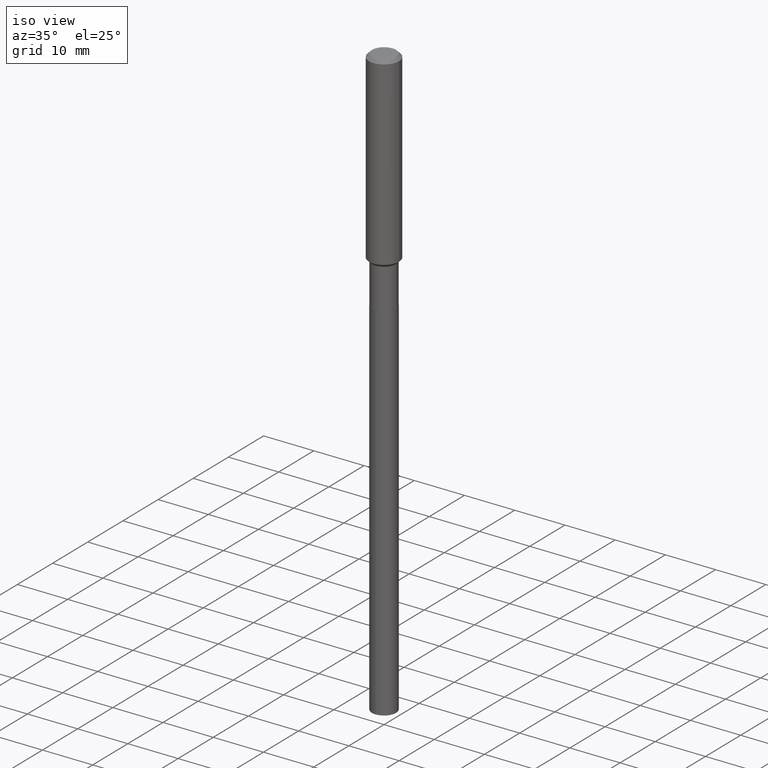
[diagram: clean part render]
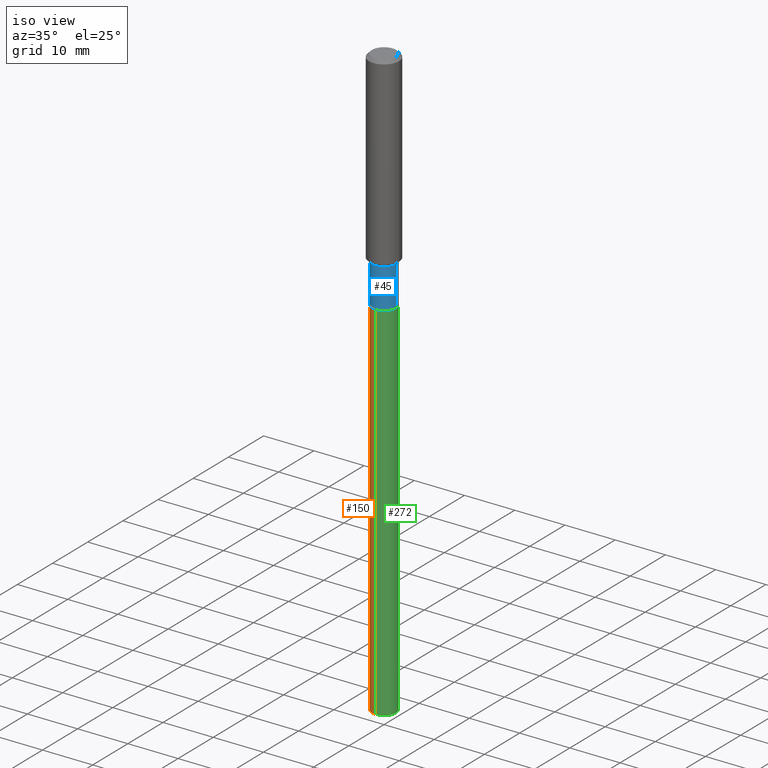
[diagram: same view with three faces highlighted in distinct colors, each labeled with its STEP entity id]
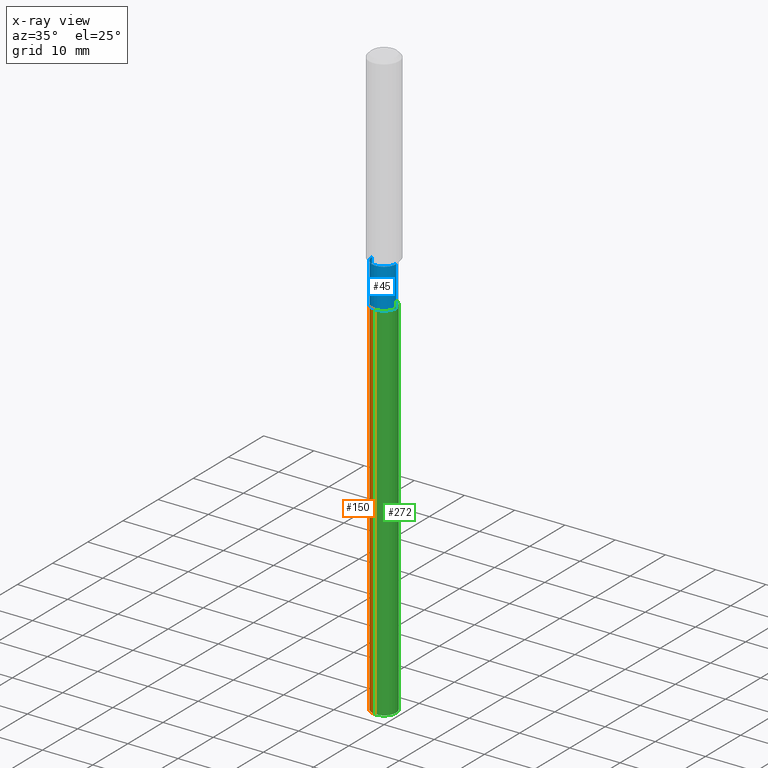
[diagram: x-ray of the same camera — body ghosted, the three highlighted faces saturated]
A machine part, iso view with three faces highlighted in distinct colors.
The next image is the same camera in x-ray (body ghosted, the three faces saturated) — at least one of them is partly hidden behind the body in this view.
Their STEP definitions:

[orange] entity #150 — the highlighted cylindrical surface (edge-blend (fillet) strip) has radius 2.4003 mm, axis along (-0, 0, 1).
#4 = CARTESIAN_POINT ( 'NONE',  ( -6.598899730413084303E-16, -0.09450000000000620404, -1.779499999999998527 ) ) ;
#5 = EDGE_LOOP ( 'NONE', ( #240, #195, #453, #149 ) ) ;
#35 = DIRECTION ( 'NONE',  ( -6.982962677686265922E-15, -1.000000000000000000, 5.781688875479922944E-15 ) ) ;
#38 = EDGE_CURVE ( 'NONE', #336, #402, #316, .T. ) ;
#39 = AXIS2_PLACEMENT_3D ( 'NONE', #295, #365, #111 ) ;
#56 = EDGE_CURVE ( 'NONE', #64, #224, #462, .T. ) ;
#64 = VERTEX_POINT ( 'NONE', #360 ) ;
#102 = DIRECTION ( 'NONE',  ( -2.445477424987146974E-29, 3.491468996228114924E-15, 1.000000000000000000 ) ) ;
#111 = DIRECTION ( 'NONE',  ( -6.982962677686265922E-15, -1.000000000000000000, 2.890844437739961472E-15 ) ) ;
#132 = CARTESIAN_POINT ( 'NONE',  ( -6.598899730413084303E-16, -0.09450000000000620404, -1.779499999999998971 ) ) ;
#137 = DIRECTION ( 'NONE',  ( -2.445477424987146974E-29, 3.491468996228114924E-15, 1.000000000000000000 ) ) ;
#141 = CARTESIAN_POINT ( 'NONE',  ( 1.136601462681407655E-28, -1.622758588389320195E-14, -4.647775460054386798 ) ) ;
#149 = ORIENTED_EDGE ( 'NONE', *, *, #175, .F. ) ;
#150 = ADVANCED_FACE ( 'NONE', ( #258 ), #333, .T. ) ;
#175 = EDGE_CURVE ( 'NONE', #224, #402, #222, .T. ) ;
#195 = ORIENTED_EDGE ( 'NONE', *, *, #196, .T. ) ;
#196 = EDGE_CURVE ( 'NONE', #64, #336, #198, .T. ) ;
#198 = CIRCLE ( 'NONE', #344, 0.09449999999999998679 ) ;
#208 = CARTESIAN_POINT ( 'NONE',  ( 6.714628852933380677E-16, 0.09449999999999378342, -1.779499999999999416 ) ) ;
#222 = CIRCLE ( 'NONE', #354, 0.09449999999999998679 ) ;
#223 = DIRECTION ( 'NONE',  ( -6.982962677686265922E-15, -1.000000000000000000, 2.890844437739961472E-15 ) ) ;
#224 = VERTEX_POINT ( 'NONE', #289 ) ;
#230 = CARTESIAN_POINT ( 'NONE',  ( -6.598899730412382216E-16, -0.09450000000001619604, -4.647775460054386798 ) ) ;
#240 = ORIENTED_EDGE ( 'NONE', *, *, #56, .F. ) ;
#258 = FACE_OUTER_BOUND ( 'NONE', #5, .T. ) ;
#262 = VECTOR ( 'NONE', #357, 39.37007874015748143 ) ;
#289 = CARTESIAN_POINT ( 'NONE',  ( 6.714628852934085722E-16, 0.09449999999999375566, -1.779499999999999194 ) ) ;
#295 = CARTESIAN_POINT ( 'NONE',  ( 4.351711740606448637E-29, -6.213091042471374170E-15, -1.779499999999999194 ) ) ;
#316 = LINE ( 'NONE', #132, #421 ) ;
#333 = CYLINDRICAL_SURFACE ( 'NONE', #39, 0.09449999999999998679 ) ;
#336 = VERTEX_POINT ( 'NONE', #230 ) ;
#344 = AXIS2_PLACEMENT_3D ( 'NONE', #141, #137, #35 ) ;
#350 = DIRECTION ( 'NONE',  ( -2.445477424987146974E-29, 3.491468996228115319E-15, 1.000000000000000000 ) ) ;
#354 = AXIS2_PLACEMENT_3D ( 'NONE', #472, #102, #223 ) ;
#357 = DIRECTION ( 'NONE',  ( -2.445477424987146974E-29, 3.491468996228115319E-15, 1.000000000000000000 ) ) ;
#360 = CARTESIAN_POINT ( 'NONE',  ( 6.714628852934081777E-16, 0.09449999999998374978, -4.647775460054387686 ) ) ;
#365 = DIRECTION ( 'NONE',  ( -2.445477424987146974E-29, 3.491468996228114924E-15, 1.000000000000000000 ) ) ;
#402 = VERTEX_POINT ( 'NONE', #4 ) ;
#421 = VECTOR ( 'NONE', #350, 39.37007874015748143 ) ;
#453 = ORIENTED_EDGE ( 'NONE', *, *, #38, .T. ) ;
#462 = LINE ( 'NONE', #208, #262 ) ;
#472 = CARTESIAN_POINT ( 'NONE',  ( 4.351711740606448076E-29, -6.213091042471374170E-15, -1.779499999999998971 ) ) ;

[blue] entity #45 — the highlighted cylindrical surface (edge-blend (fillet) strip) has radius 2.4003 mm, axis along (-0, 0, 1).
#1 = DIRECTION ( 'NONE',  ( 1.000000000000000000, -6.982962677686266711E-15, 0.000000000000000000 ) ) ;
#45 = ADVANCED_FACE ( 'NONE', ( #55 ), #435, .T. ) ;
#47 = CIRCLE ( 'NONE', #490, 0.09449999999999995903 ) ;
#53 = VECTOR ( 'NONE', #85, 39.37007874015748143 ) ;
#55 = FACE_OUTER_BOUND ( 'NONE', #138, .T. ) ;
#60 = AXIS2_PLACEMENT_3D ( 'NONE', #341, #377, #1 ) ;
#68 = ORIENTED_EDGE ( 'NONE', *, *, #89, .F. ) ;
#85 = DIRECTION ( 'NONE',  ( -2.445468806185136877E-29, 3.491481338843145188E-15, 1.000000000000000000 ) ) ;
#89 = EDGE_CURVE ( 'NONE', #120, #293, #47, .T. ) ;
#97 = DIRECTION ( 'NONE',  ( -2.445468806185136597E-29, 3.491481338843145583E-15, 1.000000000000000000 ) ) ;
#103 = VERTEX_POINT ( 'NONE', #278 ) ;
#109 = ORIENTED_EDGE ( 'NONE', *, *, #294, .T. ) ;
#120 = VERTEX_POINT ( 'NONE', #371 ) ;
#138 = EDGE_LOOP ( 'NONE', ( #414, #375, #109, #68 ) ) ;
#167 = DIRECTION ( 'NONE',  ( -2.445468806185136597E-29, 3.491481338843145583E-15, 1.000000000000000000 ) ) ;
#237 = LINE ( 'NONE', #346, #297 ) ;
#242 = DIRECTION ( 'NONE',  ( 1.000000000000000000, -6.982962677686266711E-15, 4.876176775795935793E-29 ) ) ;
#245 = DIRECTION ( 'NONE',  ( 1.000000000000000000, -6.982962677686269077E-15, 0.000000000000000000 ) ) ;
#263 = CARTESIAN_POINT ( 'NONE',  ( 0.09449999999999995903, -5.783987985927550449E-15, -1.467599999999999349 ) ) ;
#265 = LINE ( 'NONE', #305, #53 ) ;
#278 = CARTESIAN_POINT ( 'NONE',  ( 0.09449999999999998679, -6.871235274843304682E-15, -1.778999999999999027 ) ) ;
#293 = VERTEX_POINT ( 'NONE', #263 ) ;
#294 = EDGE_CURVE ( 'NONE', #103, #293, #265, .T. ) ;
#297 = VECTOR ( 'NONE', #312, 39.37007874015748143 ) ;
#304 = VERTEX_POINT ( 'NONE', #339 ) ;
#305 = CARTESIAN_POINT ( 'NONE',  ( 0.09449999999999997291, -6.598899730413520148E-16, 4.607987053127158259E-30 ) ) ;
#312 = DIRECTION ( 'NONE',  ( -2.445468806185136877E-29, 3.491481338843145188E-15, 1.000000000000000000 ) ) ;
#324 = CARTESIAN_POINT ( 'NONE',  ( 0.000000000000000000, 0.000000000000000000, 0.000000000000000000 ) ) ;
#339 = CARTESIAN_POINT ( 'NONE',  ( -0.09449999999999998679, -4.996258772050781068E-15, -1.778999999999999027 ) ) ;
#341 = CARTESIAN_POINT ( 'NONE',  ( 4.350489006203355275E-29, -6.211345301801952667E-15, -1.778999999999999027 ) ) ;
#346 = CARTESIAN_POINT ( 'NONE',  ( -0.09449999999999997291, 6.714628852932944832E-16, -4.648393660290884930E-30 ) ) ;
#371 = CARTESIAN_POINT ( 'NONE',  ( -0.09449999999999995903, -4.996258772050781068E-15, -1.467599999999999349 ) ) ;
#375 = ORIENTED_EDGE ( 'NONE', *, *, #394, .T. ) ;
#377 = DIRECTION ( 'NONE',  ( -2.445468806185136597E-29, 3.491481338843145583E-15, 1.000000000000000000 ) ) ;
#378 = AXIS2_PLACEMENT_3D ( 'NONE', #324, #97, #242 ) ;
#394 = EDGE_CURVE ( 'NONE', #304, #103, #430, .T. ) ;
#399 = CARTESIAN_POINT ( 'NONE',  ( 3.588970019957305036E-29, -5.124098012886198435E-15, -1.467599999999999349 ) ) ;
#414 = ORIENTED_EDGE ( 'NONE', *, *, #446, .F. ) ;
#430 = CIRCLE ( 'NONE', #60, 0.09449999999999998679 ) ;
#435 = CYLINDRICAL_SURFACE ( 'NONE', #378, 0.09449999999999997291 ) ;
#446 = EDGE_CURVE ( 'NONE', #304, #120, #237, .T. ) ;
#490 = AXIS2_PLACEMENT_3D ( 'NONE', #399, #167, #245 ) ;

[green] entity #272 — the highlighted cylindrical surface (edge-blend (fillet) strip) has radius 2.4003 mm, axis along (-0, 0, 1).
#4 = CARTESIAN_POINT ( 'NONE',  ( -6.598899730413084303E-16, -0.09450000000000620404, -1.779499999999998527 ) ) ;
#28 = DIRECTION ( 'NONE',  ( -2.445477424987146974E-29, 3.491468996228114924E-15, 1.000000000000000000 ) ) ;
#38 = EDGE_CURVE ( 'NONE', #336, #402, #316, .T. ) ;
#49 = CARTESIAN_POINT ( 'NONE',  ( 1.136601462681407655E-28, -1.622758588389320195E-14, -4.647775460054386798 ) ) ;
#56 = EDGE_CURVE ( 'NONE', #64, #224, #462, .T. ) ;
#64 = VERTEX_POINT ( 'NONE', #360 ) ;
#116 = AXIS2_PLACEMENT_3D ( 'NONE', #49, #192, #452 ) ;
#121 = AXIS2_PLACEMENT_3D ( 'NONE', #210, #28, #326 ) ;
#132 = CARTESIAN_POINT ( 'NONE',  ( -6.598899730413084303E-16, -0.09450000000000620404, -1.779499999999998971 ) ) ;
#152 = CARTESIAN_POINT ( 'NONE',  ( 4.351711740606448076E-29, -6.213091042471374170E-15, -1.779499999999998971 ) ) ;
#153 = DIRECTION ( 'NONE',  ( -6.982962677686265922E-15, -1.000000000000000000, 2.890844437739961472E-15 ) ) ;
#183 = EDGE_LOOP ( 'NONE', ( #426, #372, #225, #259 ) ) ;
#192 = DIRECTION ( 'NONE',  ( -2.445477424987146974E-29, 3.491468996228114924E-15, 1.000000000000000000 ) ) ;
#208 = CARTESIAN_POINT ( 'NONE',  ( 6.714628852933380677E-16, 0.09449999999999378342, -1.779499999999999416 ) ) ;
#210 = CARTESIAN_POINT ( 'NONE',  ( 4.351711740606448637E-29, -6.213091042471374170E-15, -1.779499999999999194 ) ) ;
#224 = VERTEX_POINT ( 'NONE', #289 ) ;
#225 = ORIENTED_EDGE ( 'NONE', *, *, #315, .F. ) ;
#230 = CARTESIAN_POINT ( 'NONE',  ( -6.598899730412382216E-16, -0.09450000000001619604, -4.647775460054386798 ) ) ;
#259 = ORIENTED_EDGE ( 'NONE', *, *, #38, .F. ) ;
#262 = VECTOR ( 'NONE', #357, 39.37007874015748143 ) ;
#272 = ADVANCED_FACE ( 'NONE', ( #362 ), #404, .T. ) ;
#289 = CARTESIAN_POINT ( 'NONE',  ( 6.714628852934085722E-16, 0.09449999999999375566, -1.779499999999999194 ) ) ;
#303 = DIRECTION ( 'NONE',  ( -2.445477424987146974E-29, 3.491468996228114924E-15, 1.000000000000000000 ) ) ;
#315 = EDGE_CURVE ( 'NONE', #402, #224, #451, .T. ) ;
#316 = LINE ( 'NONE', #132, #421 ) ;
#325 = AXIS2_PLACEMENT_3D ( 'NONE', #152, #303, #153 ) ;
#326 = DIRECTION ( 'NONE',  ( -6.982962677686265922E-15, -1.000000000000000000, 2.890844437739961472E-15 ) ) ;
#336 = VERTEX_POINT ( 'NONE', #230 ) ;
#350 = DIRECTION ( 'NONE',  ( -2.445477424987146974E-29, 3.491468996228115319E-15, 1.000000000000000000 ) ) ;
#357 = DIRECTION ( 'NONE',  ( -2.445477424987146974E-29, 3.491468996228115319E-15, 1.000000000000000000 ) ) ;
#358 = EDGE_CURVE ( 'NONE', #336, #64, #456, .T. ) ;
#360 = CARTESIAN_POINT ( 'NONE',  ( 6.714628852934081777E-16, 0.09449999999998374978, -4.647775460054387686 ) ) ;
#362 = FACE_OUTER_BOUND ( 'NONE', #183, .T. ) ;
#372 = ORIENTED_EDGE ( 'NONE', *, *, #56, .T. ) ;
#402 = VERTEX_POINT ( 'NONE', #4 ) ;
#404 = CYLINDRICAL_SURFACE ( 'NONE', #121, 0.09449999999999998679 ) ;
#421 = VECTOR ( 'NONE', #350, 39.37007874015748143 ) ;
#426 = ORIENTED_EDGE ( 'NONE', *, *, #358, .T. ) ;
#451 = CIRCLE ( 'NONE', #325, 0.09449999999999998679 ) ;
#452 = DIRECTION ( 'NONE',  ( -6.982962677686265922E-15, -1.000000000000000000, 5.781688875479922944E-15 ) ) ;
#456 = CIRCLE ( 'NONE', #116, 0.09449999999999998679 ) ;
#462 = LINE ( 'NONE', #208, #262 ) ;